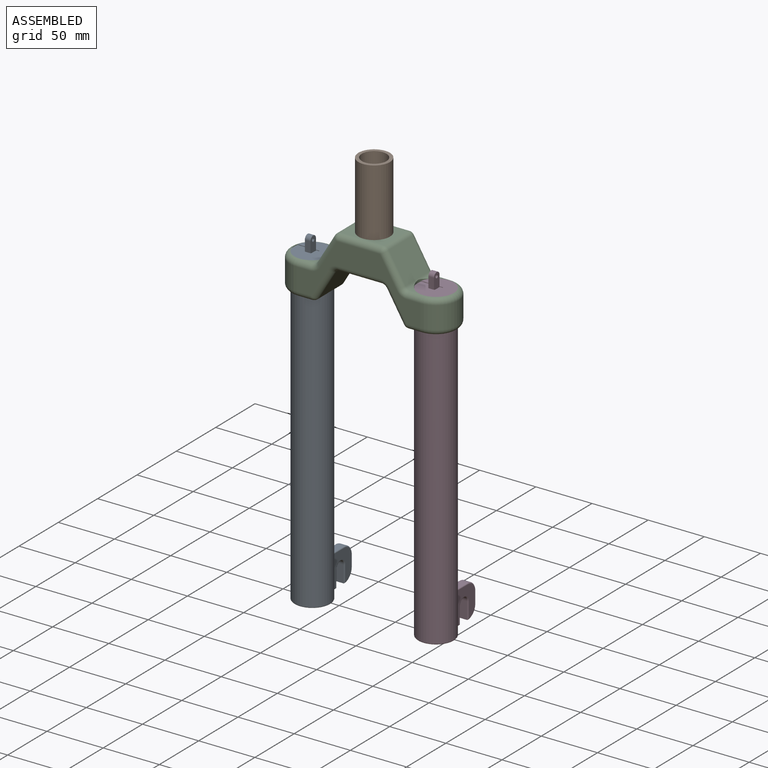
[diagram: assembled view]
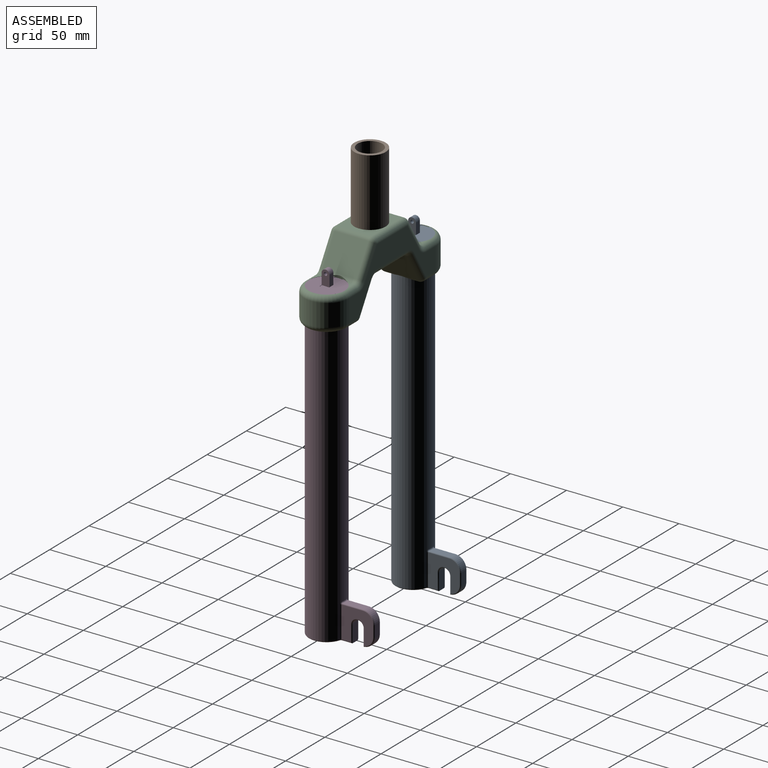
[diagram: assembled view, second angle]
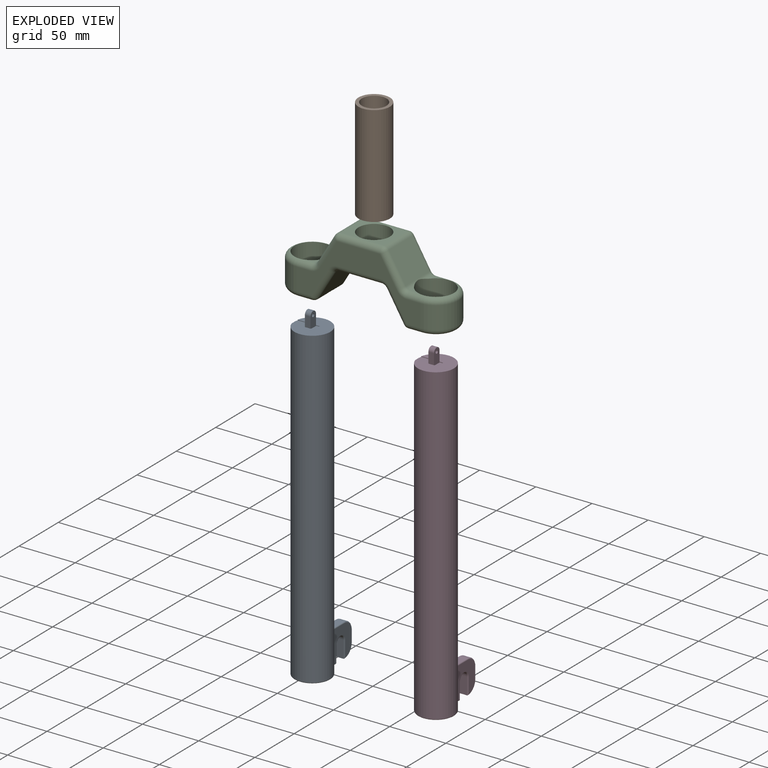
[diagram: exploded view]
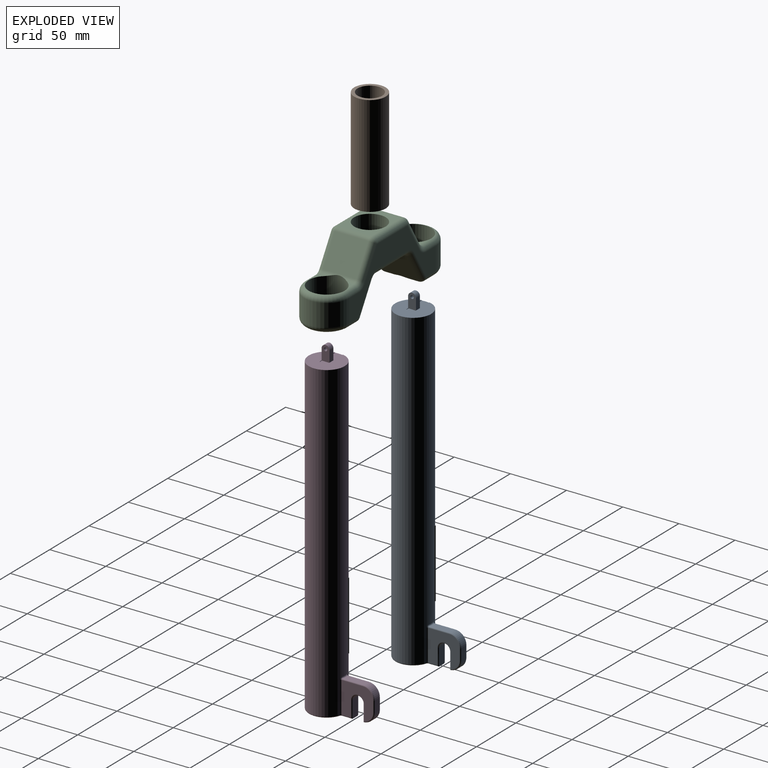
[diagram: exploded view, second angle]
ASSEMBLY  parts=4 mates=3
PART A: 45 faces, bbox 34.6x63.2x293.9 mm
  f0: plane 32x31.61mm, normal (0,0,1), area 663.4mm2, adj f2,f3,f12,f13,f14,f39,f43,f44
  f1: plane 20x7mm, normal (0,0.02,1), area 106.3mm2, adj f2,f3,f12,f13,f14,f38,f43,f44
  f2: plane 3x0.33mm, normal (0,1,0), area 1mm2, adj f0,f1,f14,f43
  f3: cylinder r=16mm len=279mm, axis (0,0,-1), area 27760.4mm2, adj f0,f1,f12,f13,f26,f29,f30,f32
  f4: plane 40.25x30mm, normal (0,0,-1), area 769.8mm2, adj f10,f31,f33,f35,f36,f37
  f5: plane 28x27.75mm, normal (1,0,0), area 517.8mm2, adj f17,f18,f20,f21,f23,f24,f27,f30
  f6: plane 28x27.75mm, normal (-1,0,0), area 563mm2, adj f9,f10,f11,f19,f22,f25,f28,f34
  f7: plane 18.27x6mm, normal (0,0,1), area 108.5mm2, adj f16,f23,f28,f29
  f8: plane 10x6mm, normal (0,1,0), area 60mm2, adj f15,f16,f17,f22
  f9: cylinder r=5mm len=10mm, axis (1,0,0), area 110mm2, adj f6,f10,f11,f24
  f10: plane 15x7mm, normal (0,1,0), area 104.8mm2, adj f4,f6,f9,f27,f37
  f11: plane 15.01x7.01mm, normal (0,-1,0), area 104.8mm2, adj f6,f9,f15,f19,f21
  f12: plane 19.61x0.48mm, normal (0,-1,0), area 9.4mm2, adj f0,f1,f3,f14
  f13: plane 11.61x0.33mm, normal (0,1,0), area 3.9mm2, adj f0,f1,f3,f44
  f14: plane 7x0.48mm, normal (-1,0,0), area 2.9mm2, adj f0,f1,f2,f12
  f15: cylinder r=10mm len=10mm, axis (1,0,0), area 92.8mm2, adj f8,f11,f18,f19
  f16: cylinder r=10mm len=10mm, axis (-1,0,0), area 94.2mm2, adj f7,f8,f20,f25
  f17: cylinder r=1mm len=10mm, axis (0,0,-1), area 15.7mm2, adj f5,f8,f18,f20
  f18: torus R=9mm, axis (1,0,0), area 22.8mm2, adj f5,f15,f17,f21
  f19: torus R=9mm, axis (1,0,0), area 23.4mm2, adj f6,f11,f15,f22
  f20: torus R=9mm, axis (1,0,0), area 23.8mm2, adj f5,f16,f17,f23
  f21: cylinder r=1mm len=15mm, axis (0,0,-1), area 23mm2, adj f5,f11,f18,f24
  f22: cylinder r=1mm len=10mm, axis (0,0,1), area 15.7mm2, adj f6,f8,f19,f25
  f23: cylinder r=1mm len=18.75mm, axis (0,1,0), area 29.2mm2, adj f5,f7,f20,f26
  f24: torus R=6mm, axis (1,0,0), area 26.5mm2, adj f5,f9,f21,f27
  f25: torus R=9mm, axis (1,0,0), area 23.8mm2, adj f6,f16,f22,f28
  f26: bspline ~2.43x2.17mm, area 3.1mm2, adj f3,f23,f29,f30
  f27: cylinder r=1mm len=15mm, axis (0,0,1), area 23mm2, adj f5,f10,f24,f31
  f28: cylinder r=1mm len=18.75mm, axis (0,-1,0), area 29.2mm2, adj f6,f7,f25,f32
  f29: torus R=17mm, axis (0,0,1), area 9.1mm2, adj f3,f7,f26,f32
  f30: cylinder r=1mm len=28mm, axis (0,0,-1), area 35.6mm2, adj f3,f5,f26,f33
  f31: cylinder r=1mm len=9mm, axis (0,-1,0), area 13.6mm2, adj f4,f5,f27,f33
  f32: bspline ~2.38x2.31mm, area 3.1mm2, adj f3,f28,f29,f34
  f33: torus R=2mm, axis (0,0,1), area 2.7mm2, adj f4,f30,f31,f35
  f34: cylinder r=1mm len=28mm, axis (0,0,-1), area 35.6mm2, adj f3,f6,f32,f36
  f35: torus R=15mm, axis (0,0,1), area 139.7mm2, adj f3,f4,f33,f36
  f36: torus R=2mm, axis (0,0,1), area 2.7mm2, adj f4,f34,f35,f37
  f37: cylinder r=1mm len=9mm, axis (0,1,0), area 14.1mm2, adj f4,f6,f10,f36
  f38: plane 5x0.1mm, normal (0,0,-1), area 0.5mm2, adj f1,f41,f43,f44
  f39: plane 9.53x5mm, normal (0,-1,0), area 47.6mm2, adj f0,f40,f43,f44
  f40: cylinder r=3.5mm len=7mm, axis (-1,0,0), area 55mm2, adj f39,f41,f43,f44
  f41: plane 10x5mm, normal (0,1,0), area 50mm2, adj f38,f40,f43,f44
  f42: cylinder r=1.5mm len=5mm, axis (-1,0,0), area 47.1mm2, adj f43,f44
  f43: plane 13.5x7mm, normal (1,0,0), area 81.6mm2, adj f0,f1,f2,f38,f39,f40,f41,f42
  f44: plane 13.5x7mm, normal (-1,0,0), area 81.6mm2, adj f0,f1,f13,f38,f39,f40,f41,f42
PART B: 4 faces, bbox 28x28x90 mm
  f0: cylinder r=11mm len=90mm, axis (0,0,-1), area 6220.4mm2, adj f2,f3
  f1: cylinder r=14mm len=90mm, axis (0,0,-1), area 7916.8mm2, adj f2,f3
  f2: plane 28x28mm, normal (0,0,1), area 235.6mm2, adj f0,f1
  f3: plane 28x28mm, normal (0,0,-1), area 235.6mm2, adj f0,f1
PART C: 69 faces, bbox 153.3x60x43.3 mm
  f0: plane 6.6x4.61mm, normal (0,-1,0), area 12.5mm2, adj f59,f60,f66
  f1: plane 6.6x4.61mm, normal (0,-1,0), area 12.5mm2, adj f50,f59,f66
  f2: plane 6.6x4.61mm, normal (0,-1,0), area 12.5mm2, adj f45,f46,f67
  f3: plane 6.6x4.61mm, normal (0,1,0), area 12.5mm2, adj f27,f37,f67
  f4: plane 6.6x4.61mm, normal (0,1,0), area 12.5mm2, adj f19,f23,f66
  f5: torus R=15mm, axis (0,-1,0), area 399.6mm2, adj f17,f43,f45,f67
  f6: plane 30x25.15mm, normal (0.86,-0.52,0), area 880.3mm2, adj f54,f59,f62,f65
  f7: plane 38.29x30mm, normal (0,-1,0), area 532.9mm2, adj f52,f53,f61,f62,f68
  f8: plane 30x25.15mm, normal (-0.86,-0.52,0), area 880.3mm2, adj f46,f47,f51,f52
  f9: plane 6.6x4.61mm, normal (0,-1,0), area 12.5mm2, adj f43,f46,f67
  f10: plane 6.6x4.61mm, normal (0,1,0), area 12.5mm2, adj f36,f37,f67
  f11: plane 30x25.15mm, normal (0.86,0.52,0), area 880.3mm2, adj f28,f37,f38,f42
  f12: plane 38.29x30mm, normal (0,1,0), area 532.9mm2, adj f29,f30,f38,f39,f68
  f13: plane 30x25.15mm, normal (-0.86,0.52,0), area 880.3mm2, adj f22,f23,f30,f31
  f14: plane 6.6x4.61mm, normal (0,1,0), area 12.5mm2, adj f23,f24,f66
  f15: plane 110x50mm, normal (0,0,1), area 1880.9mm2, adj f17,f18,f19,f20,f22,f27,f28,f29
  f16: plane 110x50mm, normal (0,0,-1), area 1880.9mm2, adj f17,f18,f24,f26,f31,f36,f39,f40
  f17: cylinder r=20mm len=40mm, axis (0,-1,0), area 1256.6mm2, adj f5,f15,f16,f32
  f18: cylinder r=20mm len=40mm, axis (0,1,0), area 1256.6mm2, adj f15,f16,f21,f56
  f19: cylinder r=5mm len=12.17mm, axis (1,0,0), area 91.8mm2, adj f4,f15,f20,f21,f66
  f20: torus R=10mm, axis (0,0,1), area 55.1mm2, adj f15,f19,f22,f23
  f21: torus R=15mm, axis (0,1,0), area 399.6mm2, adj f18,f19,f24,f66
  f22: cylinder r=5mm len=27.73mm, axis (0.52,0.86,0), area 230.5mm2, adj f13,f15,f20,f25
  f23: cylinder r=5mm len=30mm, axis (0,0,1), area 95.1mm2, adj f4,f13,f14,f20,f26,f66
  f24: cylinder r=5mm len=12.17mm, axis (-1,0,0), area 91.8mm2, adj f14,f16,f21,f26,f66
  f25: sphere r=5mm, area 25.7mm2, adj f22,f29,f30
  f26: torus R=10mm, axis (0,0,1), area 55.1mm2, adj f16,f23,f24,f31
  f27: cylinder r=5mm len=12.17mm, axis (1,0,0), area 91.8mm2, adj f3,f15,f32,f33,f67
  f28: cylinder r=5mm len=27.73mm, axis (0.52,-0.86,0), area 230.5mm2, adj f11,f15,f33,f34
  f29: cylinder r=5mm len=38.29mm, axis (1,0,0), area 300.7mm2, adj f12,f15,f25,f34
  f30: cylinder r=5mm len=30mm, axis (0,0,1), area 154.5mm2, adj f12,f13,f25,f35
  f31: cylinder r=5mm len=27.73mm, axis (-0.52,-0.86,0), area 230.5mm2, adj f13,f16,f26,f35
  f32: torus R=15mm, axis (0,-1,0), area 399.6mm2, adj f17,f27,f36,f67
  f33: torus R=10mm, axis (0,0,1), area 55.1mm2, adj f15,f27,f28,f37
  f34: sphere r=5mm, area 25.7mm2, adj f28,f29,f38
  f35: sphere r=5mm, area 25.7mm2, adj f30,f31,f39
  f36: cylinder r=5mm len=12.17mm, axis (-1,0,0), area 91.8mm2, adj f10,f16,f32,f40,f67
  f37: cylinder r=5mm len=30mm, axis (0,0,1), area 95.1mm2, adj f3,f10,f11,f33,f40,f67
  f38: cylinder r=5mm len=30mm, axis (0,0,-1), area 154.5mm2, adj f11,f12,f34,f41
  f39: cylinder r=5mm len=38.29mm, axis (-1,0,0), area 300.7mm2, adj f12,f16,f35,f41
  f40: torus R=10mm, axis (0,0,1), area 55.1mm2, adj f16,f36,f37,f42
  f41: sphere r=5mm, area 25.7mm2, adj f38,f39,f42
  f42: cylinder r=5mm len=27.73mm, axis (-0.52,0.86,0), area 230.5mm2, adj f11,f16,f40,f41
  f43: cylinder r=5mm len=12.17mm, axis (1,0,0), area 91.8mm2, adj f5,f9,f16,f44,f67
  f44: sphere r=5mm, area 25.7mm2, adj f43,f46,f47
  f45: cylinder r=5mm len=12.17mm, axis (-1,0,0), area 91.8mm2, adj f2,f5,f15,f48,f67
  f46: cylinder r=5mm len=30mm, axis (0,0,-1), area 95.1mm2, adj f2,f8,f9,f44,f48,f67
  f47: cylinder r=5mm len=27.73mm, axis (0.52,-0.86,0), area 230.5mm2, adj f8,f16,f44,f49
  f48: sphere r=5mm, area 25.7mm2, adj f45,f46,f51
  f49: torus R=10mm, axis (0,0,1), area 55.1mm2, adj f16,f47,f52,f53
  f50: cylinder r=5mm len=12.17mm, axis (1,0,0), area 91.8mm2, adj f1,f16,f55,f56,f66
  f51: cylinder r=5mm len=27.73mm, axis (-0.52,0.86,0), area 230.5mm2, adj f8,f15,f48,f57
  f52: cylinder r=5mm len=30mm, axis (0,0,-1), area 154.5mm2, adj f7,f8,f49,f57
  f53: cylinder r=5mm len=38.29mm, axis (1,0,0), area 300.7mm2, adj f7,f16,f49,f58
  f54: cylinder r=5mm len=27.73mm, axis (0.52,0.86,0), area 230.5mm2, adj f6,f16,f55,f58
  f55: sphere r=5mm, area 25.7mm2, adj f50,f54,f59
  f56: torus R=15mm, axis (0,1,0), area 399.6mm2, adj f18,f50,f60,f66
  f57: torus R=10mm, axis (0,0,1), area 55.1mm2, adj f15,f51,f52,f61
  f58: torus R=10mm, axis (0,0,1), area 55.1mm2, adj f16,f53,f54,f62
  f59: cylinder r=5mm len=30mm, axis (0,0,-1), area 95.1mm2, adj f0,f1,f6,f55,f63,f66
  f60: cylinder r=5mm len=12.17mm, axis (-1,0,0), area 91.8mm2, adj f0,f15,f56,f63,f66
  f61: cylinder r=5mm len=38.29mm, axis (-1,0,0), area 300.7mm2, adj f7,f15,f57,f64
  f62: cylinder r=5mm len=30mm, axis (0,0,1), area 154.5mm2, adj f6,f7,f58,f64
  f63: sphere r=5mm, area 25.7mm2, adj f59,f60,f65
  f64: torus R=10mm, axis (0,0,1), area 55.1mm2, adj f15,f61,f62,f65
  f65: cylinder r=5mm len=27.73mm, axis (-0.52,-0.86,0), area 230.5mm2, adj f6,f15,f63,f64
  f66: cylinder r=16mm len=32mm, axis (0,-1,0), area 3004.6mm2, adj f0,f1,f4,f14,f19,f21,f23,f24
  f67: cylinder r=16mm len=32mm, axis (0,-1,0), area 3004.6mm2, adj f2,f3,f5,f9,f10,f27,f32,f36
  f68: cylinder r=14mm len=30mm, axis (0,-1,0), area 2638.9mm2, adj f7,f12
PART D: same geometry as A
PLACE A t=(-140.16,130.55,127.5)mm
PLACE B rot(axis=(-0.94,0.07,-0.34),0deg) t=(-85.16,130.55,407.6)mm
PLACE C rot(axis=(1,0,0),90deg) t=(-117.26,150.55,377.6)mm
PLACE D rot(axis=(-0.94,0.07,-0.34),0deg) t=(-30.16,130.55,127.5)mm
MATE fastened C.f5 <-> D.f3  axis (0,0,-1) through (-30.16,130.55,407.5)mm
MATE fastened A.f3 <-> C.f18  axis (0,0,1) through (-140.16,130.55,407.5)mm
MATE fastened C.f68 <-> B.f1  axis (0,0,-1) through (-85.16,130.55,407.6)mm
